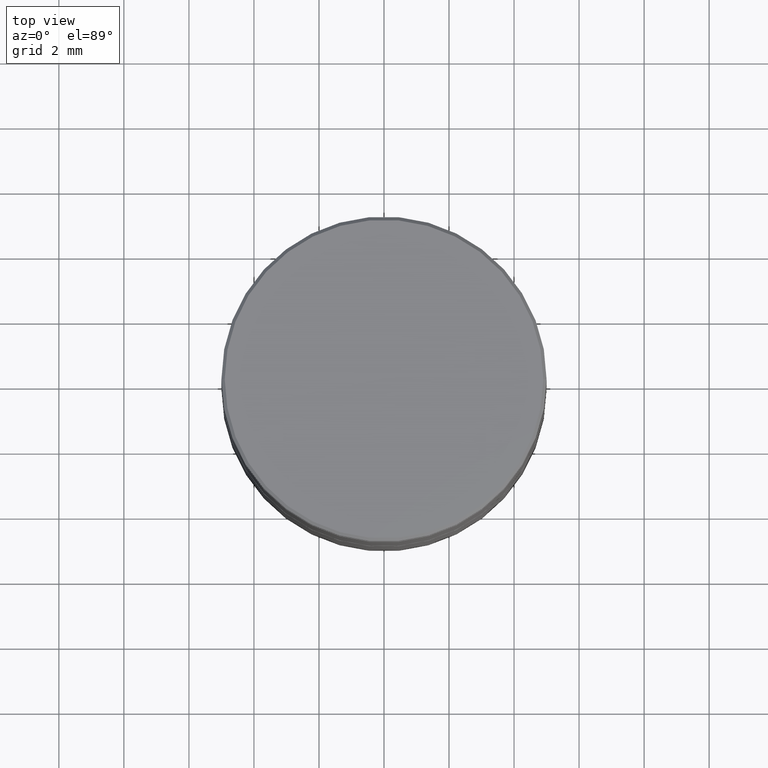
[diagram: clean part render]
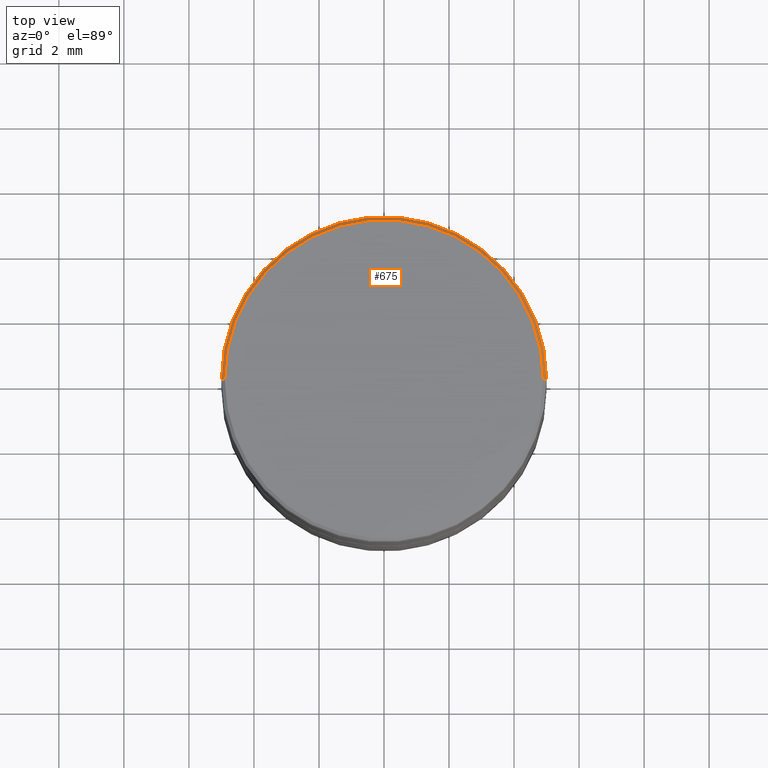
[diagram: same view with one face highlighted and labeled with its STEP entity id]
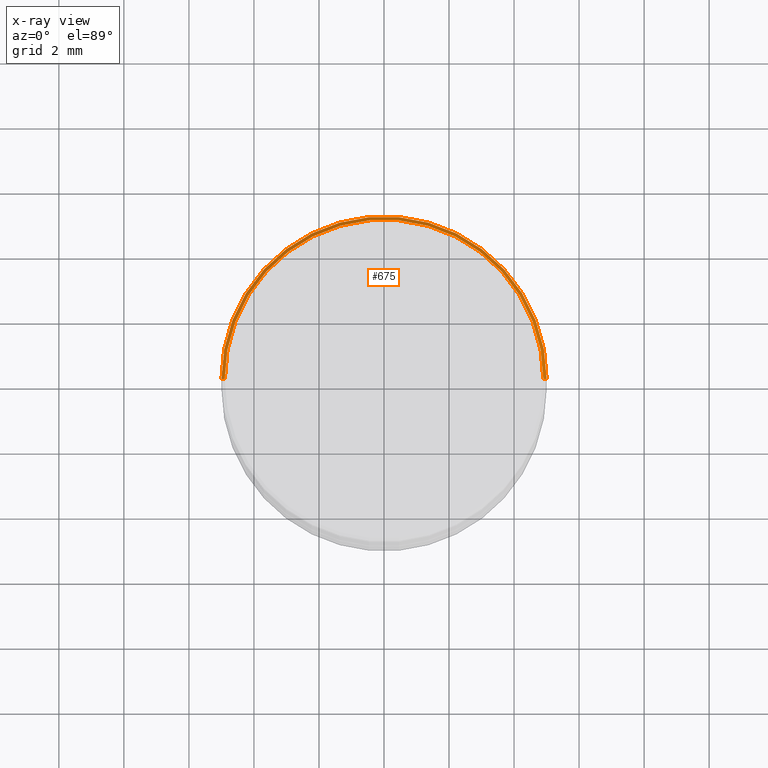
[diagram: x-ray of the same camera — body ghosted, the highlighted face saturated]
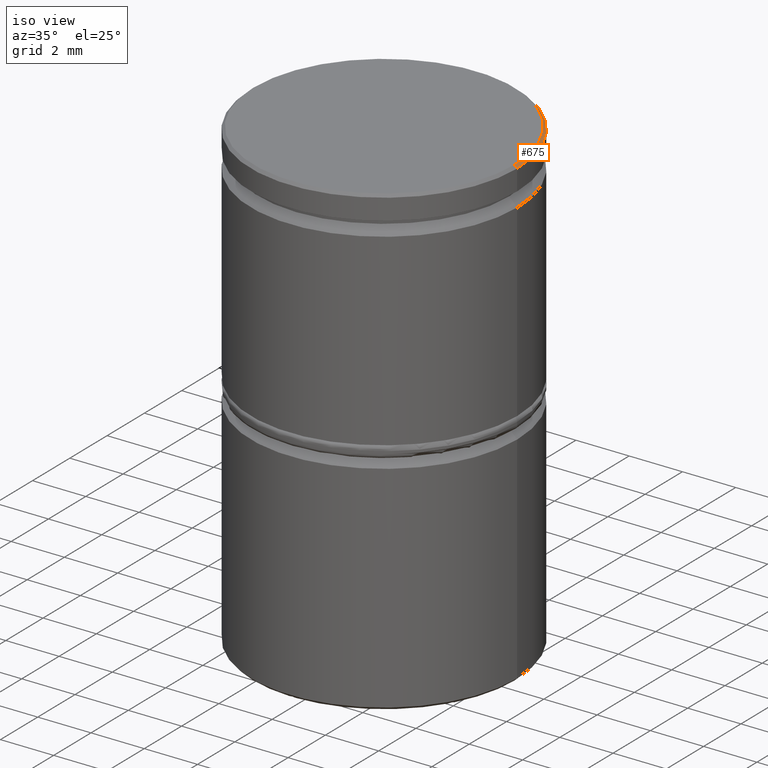
[diagram: same view with one face highlighted and labeled with its STEP entity id]
A machine part, top view. The second image highlights one B-rep face of the part: STEP entity #675.
The next image is the same camera in x-ray: the body ghosted, the highlighted face saturated — about 0% of this face is hidden behind the body in this view.
A second angle (iso view) of the same face is appended — the face is thin or edge-on in the first view.
In plain terms, the highlighted conical surface has half-angle 45 deg.
Its self-contained STEP definition (entity closure, byte-faithful):
#19 = FACE_OUTER_BOUND ( 'NONE', #1063, .T. ) ;
#30 = CONICAL_SURFACE ( 'NONE', #1323, 4.900000000000004796, 0.7853981633974482790 ) ;
#53 = CARTESIAN_POINT ( 'NONE',  ( -4.900000000000004796, 0.000000000000000000, 0.000000000000000000 ) ) ;
#58 = CARTESIAN_POINT ( 'NONE',  ( 5.000000000000000000, 0.000000000000000000, -0.09999999999999505118 ) ) ;
#59 = CARTESIAN_POINT ( 'NONE',  ( 0.000000000000000000, 0.000000000000000000, 0.000000000000000000 ) ) ;
#127 = LINE ( 'NONE', #1201, #720 ) ;
#133 = CARTESIAN_POINT ( 'NONE',  ( 0.000000000000000000, 0.000000000000000000, 0.000000000000000000 ) ) ;
#191 = EDGE_CURVE ( 'NONE', #327, #1212, #127, .T. ) ;
#196 = CARTESIAN_POINT ( 'NONE',  ( -4.900000000000004796, 0.000000000000000000, 0.000000000000000000 ) ) ;
#221 = LINE ( 'NONE', #196, #1347 ) ;
#240 = AXIS2_PLACEMENT_3D ( 'NONE', #1177, #653, #1101 ) ;
#264 = CARTESIAN_POINT ( 'NONE',  ( 4.900000000000004796, 6.062001655779401469E-16, 0.000000000000000000 ) ) ;
#294 = ORIENTED_EDGE ( 'NONE', *, *, #805, .F. ) ;
#312 = EDGE_CURVE ( 'NONE', #327, #402, #1111, .T. ) ;
#327 = VERTEX_POINT ( 'NONE', #264 ) ;
#402 = VERTEX_POINT ( 'NONE', #53 ) ;
#418 = VERTEX_POINT ( 'NONE', #911 ) ;
#439 = DIRECTION ( 'NONE',  ( 0.7071067811865474617, 8.659560562354932858E-17, -0.7071067811865474617 ) ) ;
#517 = DIRECTION ( 'NONE',  ( -0.7071067811865474617, 0.000000000000000000, -0.7071067811865474617 ) ) ;
#522 = AXIS2_PLACEMENT_3D ( 'NONE', #59, #1106, #603 ) ;
#603 = DIRECTION ( 'NONE',  ( 1.000000000000000000, 0.000000000000000000, 0.000000000000000000 ) ) ;
#640 = DIRECTION ( 'NONE',  ( -1.000000000000000000, 0.000000000000000000, 0.000000000000000000 ) ) ;
#653 = DIRECTION ( 'NONE',  ( 0.000000000000000000, 0.000000000000000000, -1.000000000000000000 ) ) ;
#675 = ADVANCED_FACE ( 'NONE', ( #19 ), #30, .T. ) ;
#720 = VECTOR ( 'NONE', #439, 1000.000000000000114 ) ;
#752 = ORIENTED_EDGE ( 'NONE', *, *, #1362, .F. ) ;
#805 = EDGE_CURVE ( 'NONE', #402, #418, #221, .T. ) ;
#911 = CARTESIAN_POINT ( 'NONE',  ( -5.000000000000000000, 6.123233995736766282E-16, -0.09999999999999505118 ) ) ;
#1021 = ORIENTED_EDGE ( 'NONE', *, *, #312, .F. ) ;
#1063 = EDGE_LOOP ( 'NONE', ( #1021, #1339, #752, #294 ) ) ;
#1101 = DIRECTION ( 'NONE',  ( 1.000000000000000000, 0.000000000000000000, 0.000000000000000000 ) ) ;
#1106 = DIRECTION ( 'NONE',  ( -0.000000000000000000, -0.000000000000000000, 1.000000000000000000 ) ) ;
#1111 = CIRCLE ( 'NONE', #522, 4.900000000000004796 ) ;
#1177 = CARTESIAN_POINT ( 'NONE',  ( 0.000000000000000000, 0.000000000000000000, -0.09999999999999505118 ) ) ;
#1201 = CARTESIAN_POINT ( 'NONE',  ( 4.900000000000004796, 6.000769315822036656E-16, 0.000000000000000000 ) ) ;
#1202 = DIRECTION ( 'NONE',  ( 0.000000000000000000, 0.000000000000000000, -1.000000000000000000 ) ) ;
#1210 = CIRCLE ( 'NONE', #240, 5.000000000000000000 ) ;
#1212 = VERTEX_POINT ( 'NONE', #58 ) ;
#1323 = AXIS2_PLACEMENT_3D ( 'NONE', #133, #1202, #640 ) ;
#1339 = ORIENTED_EDGE ( 'NONE', *, *, #191, .T. ) ;
#1347 = VECTOR ( 'NONE', #517, 1000.000000000000114 ) ;
#1362 = EDGE_CURVE ( 'NONE', #418, #1212, #1210, .T. ) ;